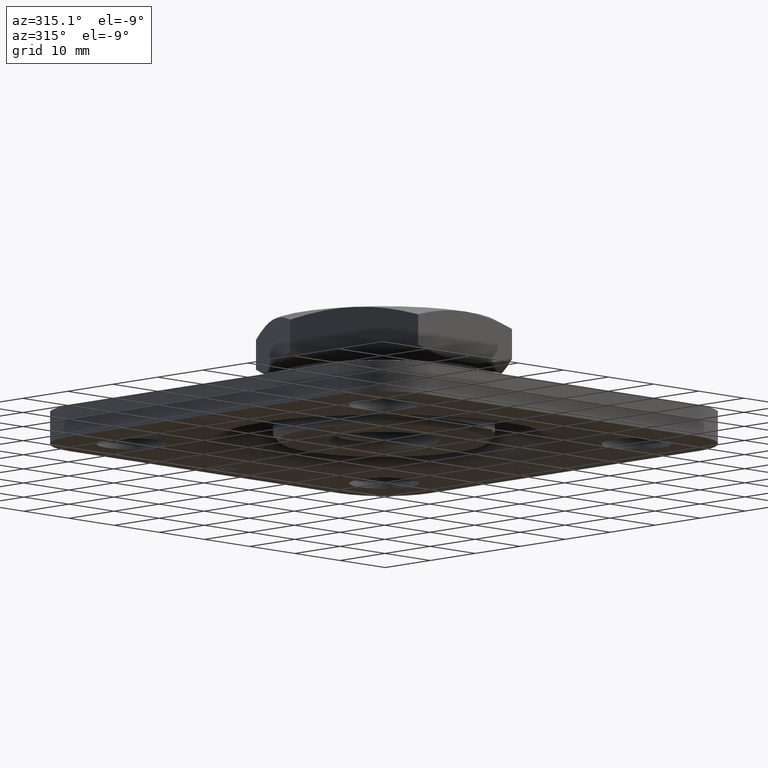
[diagram: clean part render]
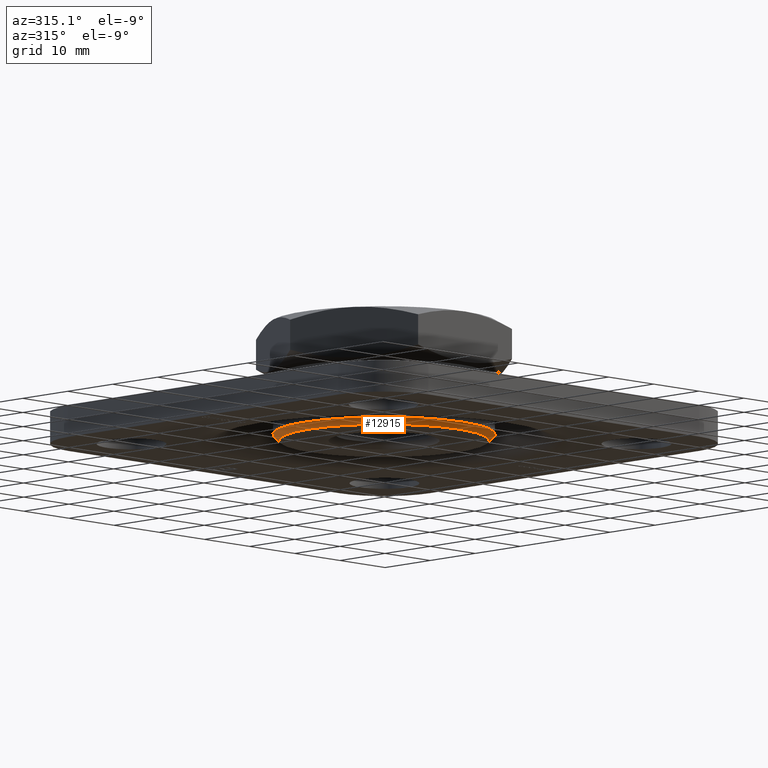
[diagram: same view with one face highlighted and labeled with its STEP entity id]
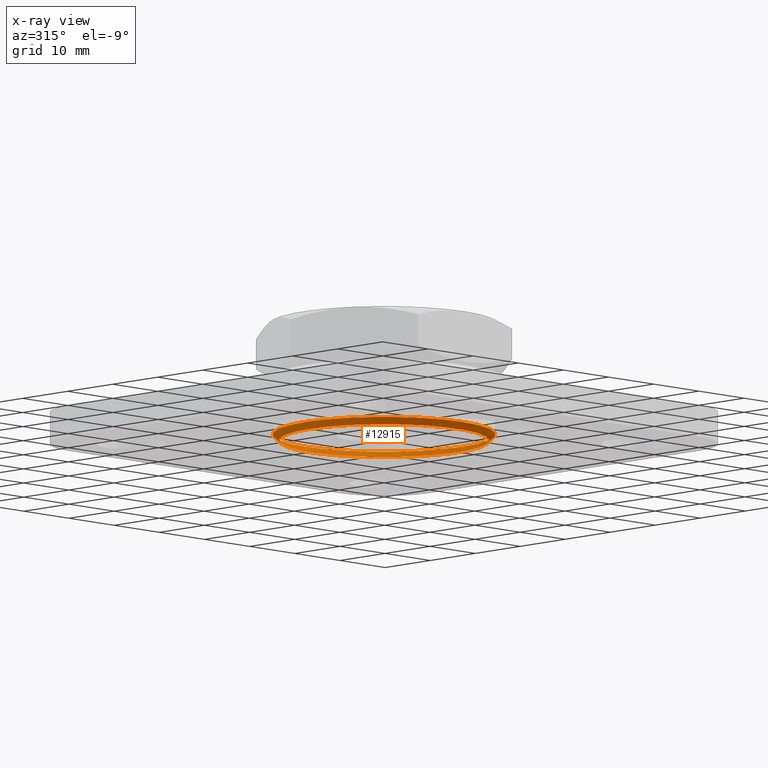
[diagram: x-ray of the same camera — body ghosted, the highlighted face saturated]
A machine part, auxiliary view. The second image highlights one B-rep face of the part: STEP entity #12915.
The next image is the same camera in x-ray: the body ghosted, the highlighted face saturated — about 0% of this face is hidden behind the body in this view.
In plain terms, the highlighted conical surface has half-angle 45 deg.
Its self-contained STEP definition (entity closure, byte-faithful):
#184 = CIRCLE ( 'NONE', #8447, 16.50000000000002842 ) ;
#801 = CONICAL_SURFACE ( 'NONE', #6914, 16.50000000000002842, 0.7853981633974533860 ) ;
#1103 = EDGE_CURVE ( 'NONE', #10366, #10366, #6880, .T. ) ;
#1570 = ORIENTED_EDGE ( 'NONE', *, *, #4951, .F. ) ;
#1847 = ORIENTED_EDGE ( 'NONE', *, *, #1103, .F. ) ;
#2873 = EDGE_LOOP ( 'NONE', ( #1847 ) ) ;
#3129 = DIRECTION ( 'NONE',  ( 0.000000000000000000, 0.000000000000000000, 1.000000000000000000 ) ) ;
#3185 = CARTESIAN_POINT ( 'NONE',  ( 0.000000000000000000, 0.000000000000000000, 1.499999999999966693 ) ) ;
#4409 = DIRECTION ( 'NONE',  ( -1.000000000000000000, 0.000000000000000000, 0.000000000000000000 ) ) ;
#4951 = EDGE_CURVE ( 'NONE', #5305, #5305, #184, .T. ) ;
#5305 = VERTEX_POINT ( 'NONE', #11466 ) ;
#5349 = CARTESIAN_POINT ( 'NONE',  ( 0.000000000000000000, 0.000000000000000000, 0.5000000000000000000 ) ) ;
#6880 = CIRCLE ( 'NONE', #11962, 17.50000000000000355 ) ;
#6914 = AXIS2_PLACEMENT_3D ( 'NONE', #13693, #13918, #12457 ) ;
#7258 = FACE_BOUND ( 'NONE', #8697, .T. ) ;
#7882 = CARTESIAN_POINT ( 'NONE',  ( -17.50000000000000355, 0.000000000000000000, 1.499999999999966693 ) ) ;
#8447 = AXIS2_PLACEMENT_3D ( 'NONE', #5349, #10360, #9110 ) ;
#8697 = EDGE_LOOP ( 'NONE', ( #1570 ) ) ;
#9110 = DIRECTION ( 'NONE',  ( -1.000000000000000000, 0.000000000000000000, 0.000000000000000000 ) ) ;
#10360 = DIRECTION ( 'NONE',  ( 0.000000000000000000, 0.000000000000000000, -1.000000000000000000 ) ) ;
#10366 = VERTEX_POINT ( 'NONE', #7882 ) ;
#11466 = CARTESIAN_POINT ( 'NONE',  ( -16.50000000000002842, 0.000000000000000000, 0.5000000000000000000 ) ) ;
#11962 = AXIS2_PLACEMENT_3D ( 'NONE', #3185, #3129, #4409 ) ;
#12341 = FACE_OUTER_BOUND ( 'NONE', #2873, .T. ) ;
#12457 = DIRECTION ( 'NONE',  ( 1.000000000000000000, 0.000000000000000000, 0.000000000000000000 ) ) ;
#12915 = ADVANCED_FACE ( 'NONE', ( #12341, #7258 ), #801, .T. ) ;
#13693 = CARTESIAN_POINT ( 'NONE',  ( 0.000000000000000000, 0.000000000000000000, 0.5000000000000004441 ) ) ;
#13918 = DIRECTION ( 'NONE',  ( 0.000000000000000000, 0.000000000000000000, 1.000000000000000000 ) ) ;